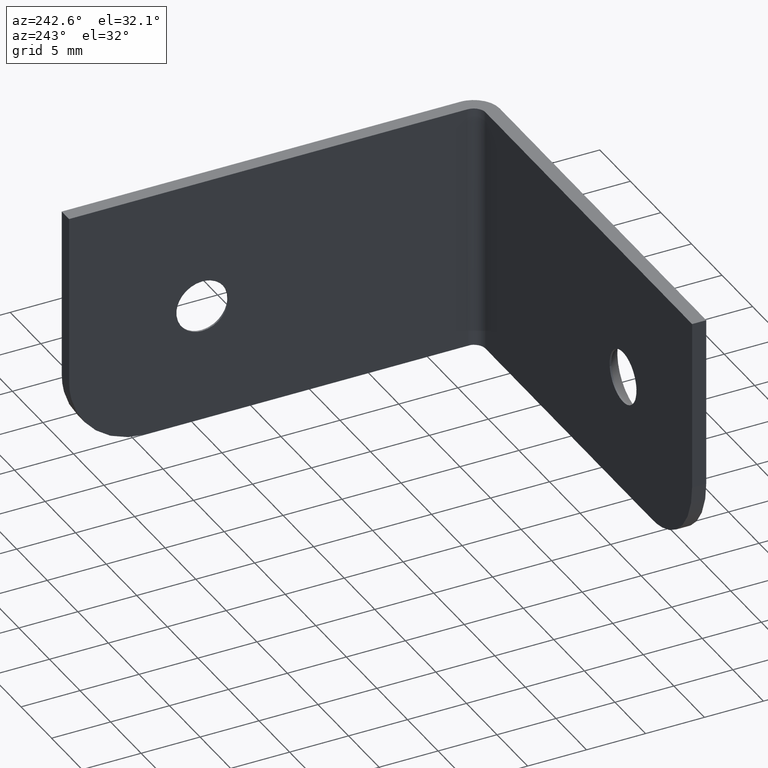
[diagram: clean part render]
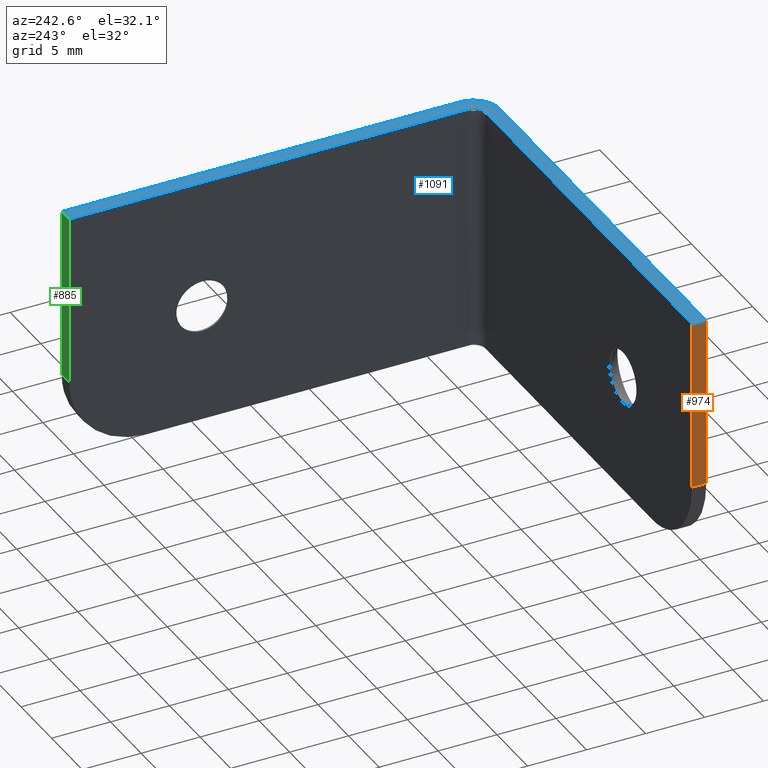
[diagram: same view with three faces highlighted in distinct colors, each labeled with its STEP entity id]
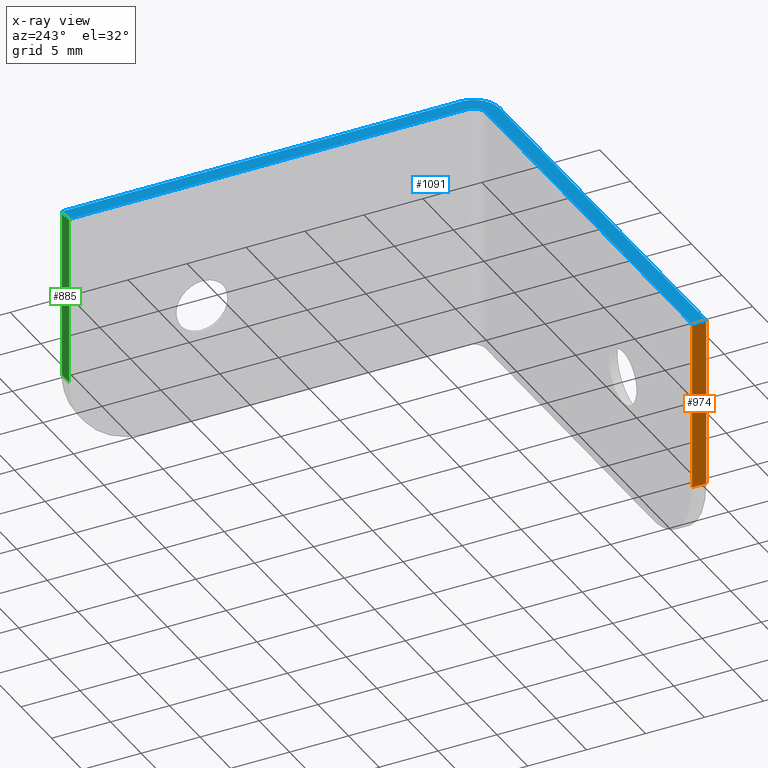
[diagram: x-ray of the same camera — body ghosted, the three highlighted faces saturated]
A machine part, auxiliary view with three faces highlighted in distinct colors.
The next image is the same camera in x-ray (body ghosted, the three faces saturated) — at least one of them is partly hidden behind the body in this view.
Their STEP definitions:

[orange] entity #974 — the highlighted face is a freeform B-spline surface patch.
#939=CARTESIAN_POINT('',(-36.0,-0.059939997674161,21.724274971896200));
#940=CARTESIAN_POINT('',(-36.0,-0.059939997674161,5.775724639183296));
#941=CARTESIAN_POINT('',(-36.0,1.259940029860537,21.724274971896200));
#942=CARTESIAN_POINT('',(-36.0,1.259940029860537,5.775724639183296));
#943=B_SPLINE_SURFACE_WITH_KNOTS('',1,1,((#939,#941),(#940,#942)),.UNSPECIFIED.,.F.,.F.,.U.,(2,2),(2,2),(0.0,15.948550332712900),(0.041708334948495,0.958291687403247),.UNSPECIFIED.);
#944=CARTESIAN_POINT('',(-36.0,0.0,6.499999999999799));
#945=VERTEX_POINT('',#944);
#946=CARTESIAN_POINT('',(-36.0,0.0,21.0));
#947=VERTEX_POINT('',#946);
#948=CARTESIAN_POINT('',(-36.0,0.0,6.499999999999799));
#949=CARTESIAN_POINT('',(-36.0,0.0,21.0));
#950=QUASI_UNIFORM_CURVE('',1,(#948,#949),.UNSPECIFIED.,.F.,.U.);
#951=EDGE_CURVE('',#945,#947,#950,.T.);
#952=ORIENTED_EDGE('',*,*,#951,.T.);
#953=CARTESIAN_POINT('',(-36.0,1.199999999999868,21.0));
#954=VERTEX_POINT('',#953);
#955=CARTESIAN_POINT('',(-36.0,1.199999999999868,21.0));
#956=CARTESIAN_POINT('',(-36.0,0.0,21.0));
#957=QUASI_UNIFORM_CURVE('',1,(#955,#956),.UNSPECIFIED.,.F.,.U.);
#958=EDGE_CURVE('',#954,#947,#957,.T.);
#959=ORIENTED_EDGE('',*,*,#958,.F.);
#960=CARTESIAN_POINT('',(-36.0,1.199999999999868,6.499999999999799));
#961=VERTEX_POINT('',#960);
#962=CARTESIAN_POINT('',(-36.0,1.199999999999868,6.499999999999799));
#963=CARTESIAN_POINT('',(-36.0,1.199999999999868,21.0));
#964=QUASI_UNIFORM_CURVE('',1,(#962,#963),.UNSPECIFIED.,.F.,.U.);
#965=EDGE_CURVE('',#961,#954,#964,.T.);
#966=ORIENTED_EDGE('',*,*,#965,.F.);
#967=CARTESIAN_POINT('',(-36.0,1.199999999999868,6.499999999999799));
#968=CARTESIAN_POINT('',(-36.0,0.0,6.499999999999799));
#969=QUASI_UNIFORM_CURVE('',1,(#967,#968),.UNSPECIFIED.,.F.,.U.);
#970=EDGE_CURVE('',#961,#945,#969,.T.);
#971=ORIENTED_EDGE('',*,*,#970,.T.);
#972=EDGE_LOOP('',(#952,#959,#966,#971));
#973=FACE_OUTER_BOUND('',#972,.T.);
#974=ADVANCED_FACE('',(#973),#943,.F.);

[blue] entity #1091 — the highlighted face is a freeform B-spline surface patch.
#742=CARTESIAN_POINT('',(-2.200000000000000,0.0,21.0));
#743=VERTEX_POINT('',#742);
#744=CARTESIAN_POINT('',(0.0,2.200000000000000,21.0));
#745=VERTEX_POINT('',#744);
#746=CARTESIAN_POINT('',(-2.200000000000000,0.0,21.0));
#747=CARTESIAN_POINT('',(0.0,0.0,21.000000000000004));
#748=CARTESIAN_POINT('',(0.0,2.200000000000000,21.0));
#756=(BOUNDED_CURVE()B_SPLINE_CURVE(2,(#746,#747,#748),.UNSPECIFIED.,.F.,.U.)CURVE()GEOMETRIC_REPRESENTATION_ITEM()QUASI_UNIFORM_CURVE()RATIONAL_B_SPLINE_CURVE((1.0,0.707106781186548,1.0))REPRESENTATION_ITEM(''));
#757=EDGE_CURVE('',#743,#745,#756,.T.);
#820=CARTESIAN_POINT('',(-2.200000000000000,1.199999999999902,21.0));
#821=VERTEX_POINT('',#820);
#827=CARTESIAN_POINT('',(-1.200000000000000,2.199999999999905,21.0));
#828=VERTEX_POINT('',#827);
#829=CARTESIAN_POINT('',(-1.200000000000000,2.199999999999905,21.0));
#830=CARTESIAN_POINT('',(-1.200000000000000,1.199999999999905,21.000000000000004));
#831=CARTESIAN_POINT('',(-2.200000000000000,1.199999999999905,21.0));
#839=(BOUNDED_CURVE()B_SPLINE_CURVE(2,(#829,#830,#831),.UNSPECIFIED.,.F.,.U.)CURVE()GEOMETRIC_REPRESENTATION_ITEM()QUASI_UNIFORM_CURVE()RATIONAL_B_SPLINE_CURVE((1.0,0.707106781186548,1.0))REPRESENTATION_ITEM(''));
#840=EDGE_CURVE('',#828,#821,#839,.T.);
#857=CARTESIAN_POINT('',(0.0,36.0,21.0));
#858=VERTEX_POINT('',#857);
#871=CARTESIAN_POINT('',(-1.199999999999980,36.0,21.0));
#872=VERTEX_POINT('',#871);
#878=CARTESIAN_POINT('',(-1.199999999999980,36.0,21.0));
#879=CARTESIAN_POINT('',(0.0,36.0,21.0));
#880=QUASI_UNIFORM_CURVE('',1,(#878,#879),.UNSPECIFIED.,.F.,.U.);
#881=EDGE_CURVE('',#872,#858,#880,.T.);
#946=CARTESIAN_POINT('',(-36.0,0.0,21.0));
#947=VERTEX_POINT('',#946);
#953=CARTESIAN_POINT('',(-36.0,1.199999999999868,21.0));
#954=VERTEX_POINT('',#953);
#955=CARTESIAN_POINT('',(-36.0,1.199999999999868,21.0));
#956=CARTESIAN_POINT('',(-36.0,0.0,21.0));
#957=QUASI_UNIFORM_CURVE('',1,(#955,#956),.UNSPECIFIED.,.F.,.U.);
#958=EDGE_CURVE('',#954,#947,#957,.T.);
#1060=CARTESIAN_POINT('',(1.798199930225013,-1.798199930225013,21.0));
#1061=CARTESIAN_POINT('',(-37.798200895820251,-1.798199930225013,21.0));
#1062=CARTESIAN_POINT('',(1.798199930225013,37.798200895820251,21.0));
#1063=CARTESIAN_POINT('',(-37.798200895820251,37.798200895820251,21.0));
#1064=B_SPLINE_SURFACE_WITH_KNOTS('',1,1,((#1060,#1062),(#1061,#1063)),.UNSPECIFIED.,.F.,.F.,.U.,(2,2),(2,2),(0.0,39.596400826045262),(0.0,39.596400826045262),.UNSPECIFIED.);
#1065=CARTESIAN_POINT('',(-36.0,0.0,21.0));
#1066=CARTESIAN_POINT('',(-2.200000000000000,0.0,21.0));
#1067=QUASI_UNIFORM_CURVE('',1,(#1065,#1066),.UNSPECIFIED.,.F.,.U.);
#1068=EDGE_CURVE('',#947,#743,#1067,.T.);
#1069=ORIENTED_EDGE('',*,*,#1068,.T.);
#1070=ORIENTED_EDGE('',*,*,#757,.T.);
#1071=CARTESIAN_POINT('',(0.0,36.0,21.0));
#1072=CARTESIAN_POINT('',(0.0,2.200000000000000,21.0));
#1073=QUASI_UNIFORM_CURVE('',1,(#1071,#1072),.UNSPECIFIED.,.F.,.U.);
#1074=EDGE_CURVE('',#858,#745,#1073,.T.);
#1075=ORIENTED_EDGE('',*,*,#1074,.F.);
#1076=ORIENTED_EDGE('',*,*,#881,.F.);
#1077=CARTESIAN_POINT('',(-1.199999999999980,36.0,21.0));
#1078=CARTESIAN_POINT('',(-1.200000000000000,2.199999999999905,21.0));
#1079=QUASI_UNIFORM_CURVE('',1,(#1077,#1078),.UNSPECIFIED.,.F.,.U.);
#1080=EDGE_CURVE('',#872,#828,#1079,.T.);
#1081=ORIENTED_EDGE('',*,*,#1080,.T.);
#1082=ORIENTED_EDGE('',*,*,#840,.T.);
#1083=CARTESIAN_POINT('',(-36.0,1.199999999999868,21.0));
#1084=CARTESIAN_POINT('',(-2.200000000000000,1.199999999999902,21.0));
#1085=QUASI_UNIFORM_CURVE('',1,(#1083,#1084),.UNSPECIFIED.,.F.,.U.);
#1086=EDGE_CURVE('',#954,#821,#1085,.T.);
#1087=ORIENTED_EDGE('',*,*,#1086,.F.);
#1088=ORIENTED_EDGE('',*,*,#958,.T.);
#1089=EDGE_LOOP('',(#1069,#1070,#1075,#1076,#1081,#1082,#1087,#1088));
#1090=FACE_OUTER_BOUND('',#1089,.T.);
#1091=ADVANCED_FACE('',(#1090),#1064,.F.);

[green] entity #885 — the highlighted face is a freeform B-spline surface patch.
#850=CARTESIAN_POINT('',(-1.259940053997854,36.0,5.775725028103603));
#851=CARTESIAN_POINT('',(-1.259940053997854,36.0,21.724275360816510));
#852=CARTESIAN_POINT('',(0.059940032540201,36.0,5.775725028103603));
#853=CARTESIAN_POINT('',(0.059940032540201,36.0,21.724275360816510));
#854=B_SPLINE_SURFACE_WITH_KNOTS('',1,1,((#850,#852),(#851,#853)),.UNSPECIFIED.,.F.,.F.,.U.,(2,2),(2,2),(0.0,15.948550332712900),(0.041708295834810,0.958291689264029),.UNSPECIFIED.);
#855=CARTESIAN_POINT('',(0.0,36.0,6.499999999999799));
#856=VERTEX_POINT('',#855);
#857=CARTESIAN_POINT('',(0.0,36.0,21.0));
#858=VERTEX_POINT('',#857);
#859=CARTESIAN_POINT('',(0.0,36.0,6.499999999999799));
#860=CARTESIAN_POINT('',(0.0,36.0,21.0));
#861=QUASI_UNIFORM_CURVE('',1,(#859,#860),.UNSPECIFIED.,.F.,.U.);
#862=EDGE_CURVE('',#856,#858,#861,.T.);
#863=ORIENTED_EDGE('',*,*,#862,.F.);
#864=CARTESIAN_POINT('',(-1.199999999999980,36.0,6.499999999999799));
#865=VERTEX_POINT('',#864);
#866=CARTESIAN_POINT('',(-1.199999999999980,36.0,6.499999999999799));
#867=CARTESIAN_POINT('',(0.0,36.0,6.499999999999799));
#868=QUASI_UNIFORM_CURVE('',1,(#866,#867),.UNSPECIFIED.,.F.,.U.);
#869=EDGE_CURVE('',#865,#856,#868,.T.);
#870=ORIENTED_EDGE('',*,*,#869,.F.);
#871=CARTESIAN_POINT('',(-1.199999999999980,36.0,21.0));
#872=VERTEX_POINT('',#871);
#873=CARTESIAN_POINT('',(-1.199999999999980,36.0,6.499999999999799));
#874=CARTESIAN_POINT('',(-1.199999999999980,36.0,21.0));
#875=QUASI_UNIFORM_CURVE('',1,(#873,#874),.UNSPECIFIED.,.F.,.U.);
#876=EDGE_CURVE('',#865,#872,#875,.T.);
#877=ORIENTED_EDGE('',*,*,#876,.T.);
#878=CARTESIAN_POINT('',(-1.199999999999980,36.0,21.0));
#879=CARTESIAN_POINT('',(0.0,36.0,21.0));
#880=QUASI_UNIFORM_CURVE('',1,(#878,#879),.UNSPECIFIED.,.F.,.U.);
#881=EDGE_CURVE('',#872,#858,#880,.T.);
#882=ORIENTED_EDGE('',*,*,#881,.T.);
#883=EDGE_LOOP('',(#863,#870,#877,#882));
#884=FACE_OUTER_BOUND('',#883,.T.);
#885=ADVANCED_FACE('',(#884),#854,.T.);